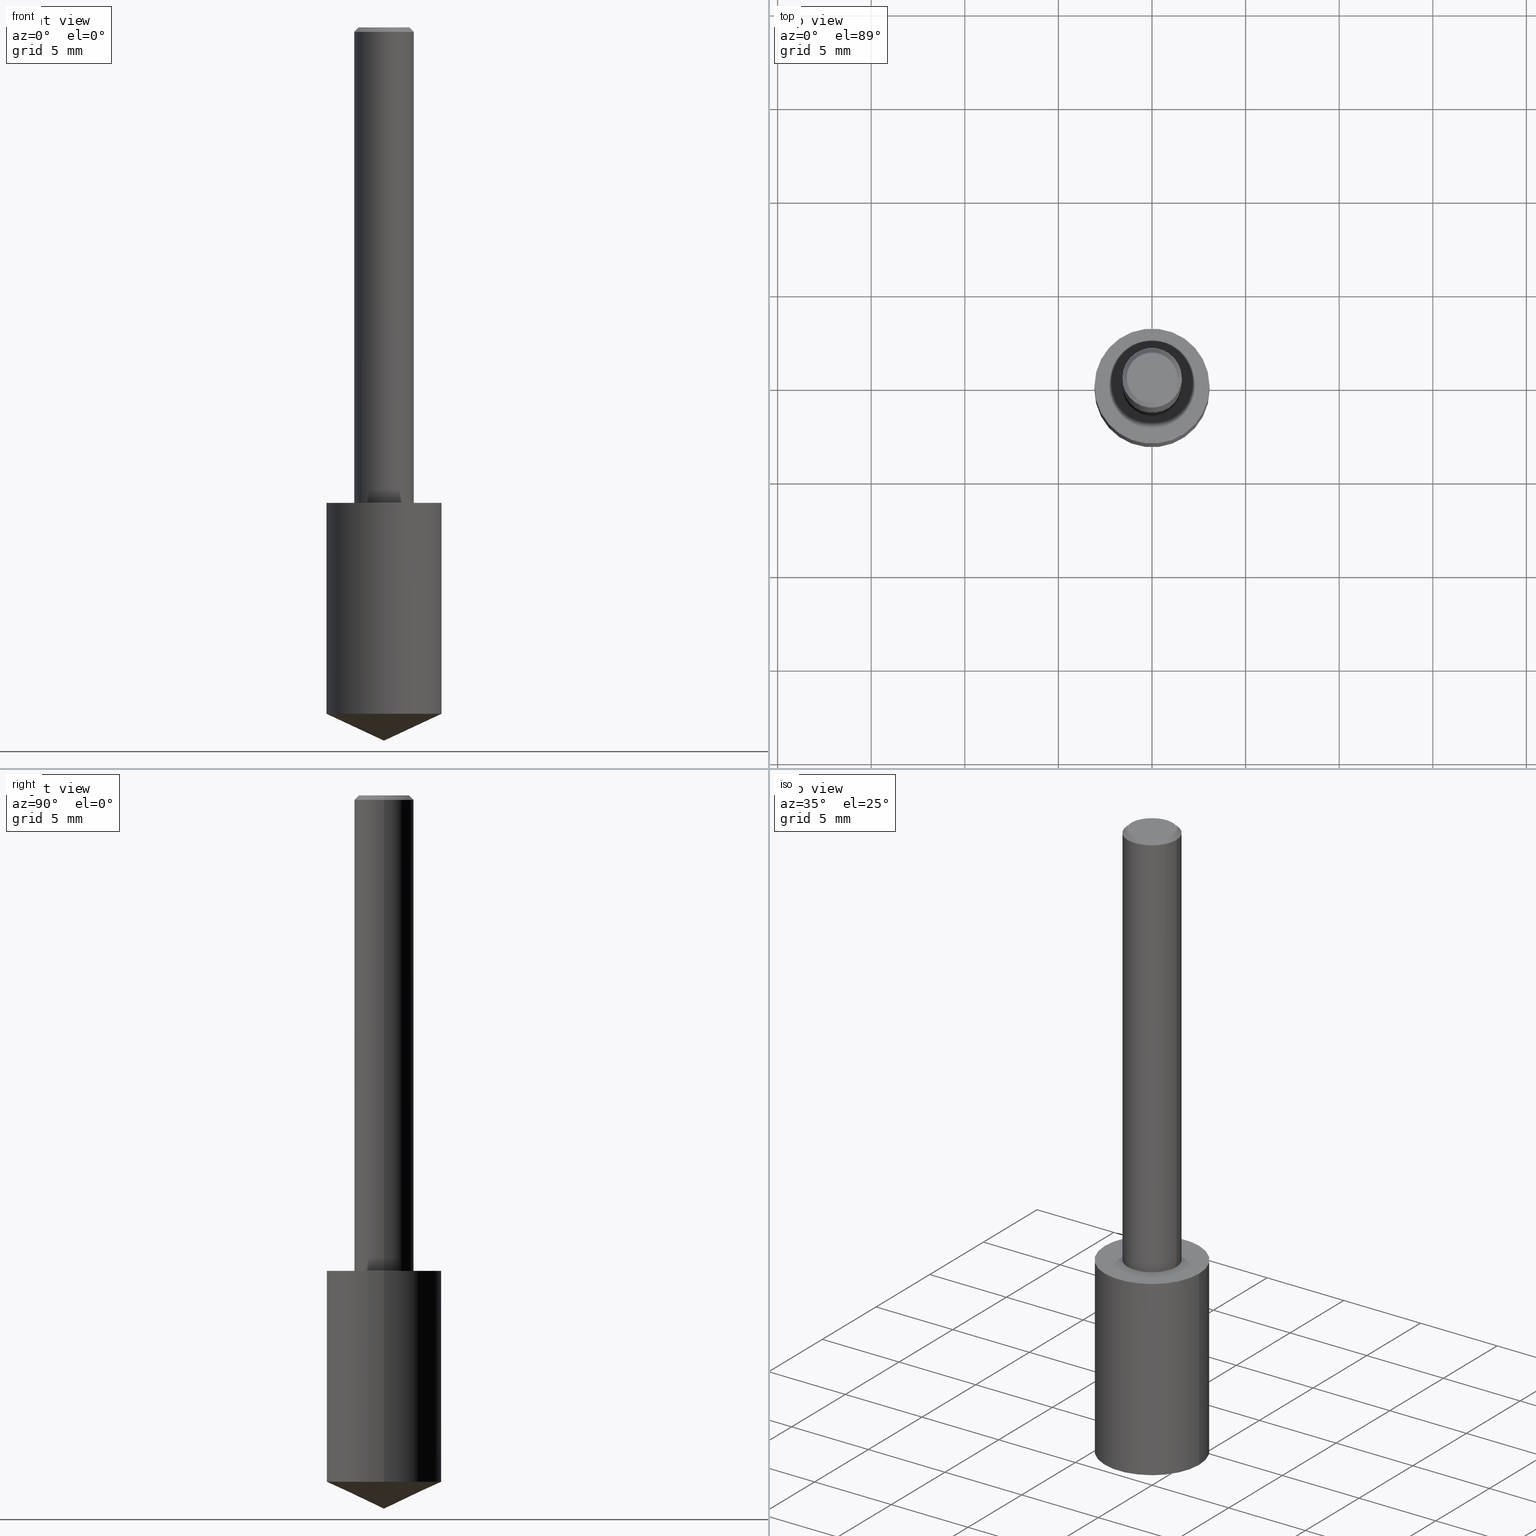
[diagram: canonical four-view strip — front | top / right | iso, engineering-drawing reading convention]
A machine part, canonical four-view strip (front | top / right | iso — engineering-drawing reading convention). The complete STEP part file that produces these views, byte-faithful:
ISO-10303-21;
HEADER;
FILE_DESCRIPTION (( 'STEP AP203' ),
    '1' );
FILE_NAME ('06167.STEP',
    '2024-04-30T18:32:33',
    ( '' ),
    ( '' ),
    'SwSTEP 2.0',
    'SolidWorks 2023',
    '' );
FILE_SCHEMA (( 'CONFIG_CONTROL_DESIGN' ));
ENDSEC;

DATA;
#1 = AXIS2_PLACEMENT_3D ( 'NONE', #221, #62, #89 ) ;
#2 = ORIENTED_EDGE ( 'NONE', *, *, #224, .T. ) ;
#3 = COORDINATED_UNIVERSAL_TIME_OFFSET ( 5, 0, .BEHIND. ) ;
#4 = DIRECTION ( 'NONE',  ( 2.438088387897960049E-29, -3.491481338843145188E-15, -1.000000000000000000 ) ) ;
#5 = ADVANCED_FACE ( 'NONE', ( #288 ), #183, .F. ) ;
#6 = CIRCLE ( 'NONE', #194, 0.06250000000000000000 ) ;
#7 = EDGE_CURVE ( 'NONE', #275, #155, #206, .T. ) ;
#8 =( CONVERSION_BASED_UNIT ( 'INCH', #190 ) LENGTH_UNIT ( ) NAMED_UNIT ( #229 ) );
#9 = CARTESIAN_POINT ( 'NONE',  ( -0.1210000000000000103, -2.631724628573425172E-15, -1.000000000000000222 ) ) ;
#10 = APPROVAL_ROLE ( '' ) ;
#11 = ORIENTED_EDGE ( 'NONE', *, *, #252, .F. ) ;
#12 = LINE ( 'NONE', #9, #55 ) ;
#13 = DIRECTION ( 'NONE',  ( -2.445468806185136597E-29, 3.491481338843145583E-15, 1.000000000000000000 ) ) ;
#14 = SECURITY_CLASSIFICATION_LEVEL ( 'unclassified' ) ;
#15 = DIRECTION ( 'NONE',  ( 1.000000000000000000, -6.982962677686266711E-15, 4.876176775795935793E-29 ) ) ;
#16 = COORDINATED_UNIVERSAL_TIME_OFFSET ( 5, 0, .BEHIND. ) ;
#17 = DIRECTION ( 'NONE',  ( -1.000000000000000000, 6.982962677686265922E-15, -4.876176775795935793E-29 ) ) ;
#18 = DIRECTION ( 'NONE',  ( 0.9063077870366508249, -4.853149677051392201E-15, 0.4226182617406975539 ) ) ;
#19 = CARTESIAN_POINT ( 'NONE',  ( 2.292627005798580623E-31, -3.273263755165470801E-17, -0.009375000000000062103 ) ) ;
#20 = CIRCLE ( 'NONE', #156, 0.05312499999999999861 ) ;
#21 = VERTEX_POINT ( 'NONE', #72 ) ;
#22 = CALENDAR_DATE ( 2024, 30, 4 ) ;
#23 = VERTEX_POINT ( 'NONE', #28 ) ;
#24 = APPROVAL ( #327, 'UNSPECIFIED' ) ;
#25 = ORIENTED_EDGE ( 'NONE', *, *, #302, .T. ) ;
#26 = CIRCLE ( 'NONE', #262, 0.1210000000000000103 ) ;
#27 = EDGE_CURVE ( 'NONE', #124, #329, #126, .T. ) ;
#28 = CARTESIAN_POINT ( 'NONE',  ( 0.1210000000000000103, -5.885159849385211106E-15, -1.443576773363245636 ) ) ;
#29 = AXIS2_PLACEMENT_3D ( 'NONE', #264, #318, #161 ) ;
#30 = CC_DESIGN_APPROVAL ( #160, ( #261 ) ) ;
#31 = APPLICATION_CONTEXT ( 'configuration controlled 3d designs of mechanical parts and assemblies' ) ;
#32 = CYLINDRICAL_SURFACE ( 'NONE', #263, 0.1210000000000000103 ) ;
#33 = AXIS2_PLACEMENT_3D ( 'NONE', #19, #138, #223 ) ;
#34 = DIRECTION ( 'NONE',  ( -1.000000000000000000, 6.982962677686266711E-15, 0.000000000000000000 ) ) ;
#35 = VERTEX_POINT ( 'NONE', #258 ) ;
#36 = DIRECTION ( 'NONE',  ( -2.445468806185136597E-29, 3.491481338843145583E-15, 1.000000000000000000 ) ) ;
#37 = ADVANCED_FACE ( 'NONE', ( #285 ), #48, .F. ) ;
#38 = PERSON_AND_ORGANIZATION ( #235, #189 ) ;
#39 = CIRCLE ( 'NONE', #311, 0.05312499999999999861 ) ;
#40 = CARTESIAN_POINT ( 'NONE',  ( 2.292627005798580623E-31, -3.273263755165470801E-17, -0.009375000000000062103 ) ) ;
#41 = ORIENTED_EDGE ( 'NONE', *, *, #27, .F. ) ;
#42 = CARTESIAN_POINT ( 'NONE',  ( -0.06250000000000000000, 4.037025298037369984E-16, -0.009375000000000062103 ) ) ;
#43 = DIRECTION ( 'NONE',  ( 1.000000000000000000, -6.982962677686266711E-15, 0.000000000000000000 ) ) ;
#44 = ADVANCED_BREP_SHAPE_REPRESENTATION ( '06167', ( #170, #174, #195 ), #231 ) ;
#45 = ORIENTED_EDGE ( 'NONE', *, *, #309, .F. ) ;
#46 = EDGE_CURVE ( 'NONE', #270, #275, #39, .T. ) ;
#47 = AXIS2_PLACEMENT_3D ( 'NONE', #150, #253, #167 ) ;
#48 = PLANE ( 'NONE',  #211 ) ;
#49 = CC_DESIGN_PERSON_AND_ORGANIZATION_ASSIGNMENT ( #122, #118, ( #210 ) ) ;
#50 = EDGE_CURVE ( 'NONE', #124, #23, #290, .T. ) ;
#51 = DIRECTION ( 'NONE',  ( -2.438088387897960049E-29, 3.491481338843145188E-15, 1.000000000000000000 ) ) ;
#52 = FACE_OUTER_BOUND ( 'NONE', #61, .T. ) ;
#53 = EDGE_CURVE ( 'NONE', #23, #329, #26, .T. ) ;
#54 = AXIS2_PLACEMENT_3D ( 'NONE', #108, #13, #15 ) ;
#55 = VECTOR ( 'NONE', #218, 39.37007874015748143 ) ;
#56 = PRODUCT ( '06167', '06167', '', ( #245 ) ) ;
#57 = LOCAL_TIME ( 14, 32, 33.00000000000000000, #16 ) ;
#58 = EDGE_LOOP ( 'NONE', ( #272, #299, #25, #225 ) ) ;
#59 = LOCAL_TIME ( 14, 32, 33.00000000000000000, #112 ) ;
#60 = CARTESIAN_POINT ( 'NONE',  ( 2.292627005798580623E-31, -3.273263755165470801E-17, -0.009375000000000062103 ) ) ;
#61 = EDGE_LOOP ( 'NONE', ( #313, #2, #187, #208 ) ) ;
#62 = DIRECTION ( 'NONE',  ( -2.445468806185136597E-29, 3.491481338843145583E-15, 1.000000000000000000 ) ) ;
#63 = EDGE_LOOP ( 'NONE', ( #45, #154, #141, #11 ) ) ;
#64 = CYLINDRICAL_SURFACE ( 'NONE', #326, 0.1210000000000000103 ) ;
#65 = DATE_TIME_ROLE ( 'creation_date' ) ;
#66 = DIRECTION ( 'NONE',  ( -2.445468806185136597E-29, 3.491481338843145583E-15, 1.000000000000000000 ) ) ;
#67 = DATE_AND_TIME ( #339, #132 ) ;
#68 = LINE ( 'NONE', #42, #97 ) ;
#69 = EDGE_LOOP ( 'NONE', ( #256, #219 ) ) ;
#70 = CALENDAR_DATE ( 2024, 30, 4 ) ;
#71 = CARTESIAN_POINT ( 'NONE',  ( 0.06250000000000012490, -3.927916506198539224E-15, -1.000000000000000222 ) ) ;
#72 = CARTESIAN_POINT ( 'NONE',  ( -0.06250000000000012490, -1.318017778347335489E-15, -1.000000000000000222 ) ) ;
#73 = EDGE_LOOP ( 'NONE', ( #217, #308, #196, #280 ) ) ;
#74 = CARTESIAN_POINT ( 'NONE',  ( -7.487088864773345706E-50, 1.068957861474247695E-35, 3.061616997868395197E-21 ) ) ;
#75 = APPLICATION_PROTOCOL_DEFINITION ( 'international standard', 'config_control_design', 1994, #31 ) ;
#76 = CONICAL_SURFACE ( 'NONE', #319, 84.42940631927440620, 1.134464013796316229 ) ;
#77 = UNCERTAINTY_MEASURE_WITH_UNIT (LENGTH_MEASURE( 1.000000000000000082E-05 ), #8, 'distance_accuracy_value', 'NONE');
#78 = ADVANCED_FACE ( 'NONE', ( #237 ), #64, .T. ) ;
#79 = DATE_AND_TIME ( #164, #336 ) ;
#80 = EDGE_LOOP ( 'NONE', ( #145, #255 ) ) ;
#81 = DIRECTION ( 'NONE',  ( 1.000000000000000000, -6.982962677686266711E-15, 0.000000000000000000 ) ) ;
#82 = ADVANCED_FACE ( 'NONE', ( #85 ), #315, .T. ) ;
#83 = AXIS2_PLACEMENT_3D ( 'NONE', #123, #289, #136 ) ;
#84 = CIRCLE ( 'NONE', #83, 0.1210000000000000103 ) ;
#85 = FACE_OUTER_BOUND ( 'NONE', #73, .T. ) ;
#86 = APPLICATION_CONTEXT ( 'configuration controlled 3d designs of mechanical parts and assemblies' ) ;
#87 = DIRECTION ( 'NONE',  ( 1.000000000000000000, 0.000000000000000000, 0.000000000000000000 ) ) ;
#88 = CARTESIAN_POINT ( 'NONE',  ( -9.261009624683002666E-28, 1.322226732217803884E-13, 37.87007874015748143 ) ) ;
#89 = DIRECTION ( 'NONE',  ( 1.000000000000000000, -6.982962677686264344E-15, 0.000000000000000000 ) ) ;
#90 = ORIENTED_EDGE ( 'NONE', *, *, #92, .F. ) ;
#91 = CARTESIAN_POINT ( 'NONE',  ( -0.06250000000000006939, 4.440892098500631092E-16, -3.074334431409319267E-30 ) ) ;
#92 = EDGE_CURVE ( 'NONE', #23, #35, #178, .T. ) ;
#93 = DIRECTION ( 'NONE',  ( 0.000000000000000000, 0.000000000000000000, 1.000000000000000000 ) ) ;
#94 = CARTESIAN_POINT ( 'NONE',  ( 2.445468806185137438E-29, -3.491481338843146371E-15, -1.000000000000000222 ) ) ;
#95 = EDGE_CURVE ( 'NONE', #155, #121, #215, .T. ) ;
#96 = DIRECTION ( 'NONE',  ( 1.000000000000000000, -6.982962677686265922E-15, 4.876176775795935793E-29 ) ) ;
#97 = VECTOR ( 'NONE', #298, 39.37007874015748143 ) ;
#98 = DIRECTION ( 'NONE',  ( -1.000000000000000000, 6.982962677686265922E-15, -4.876176775795935793E-29 ) ) ;
#99 = ADVANCED_FACE ( 'NONE', ( #120 ), #249, .T. ) ;
#100 = AXIS2_PLACEMENT_3D ( 'NONE', #246, #66, #81 ) ;
#101 = CARTESIAN_POINT ( 'NONE',  ( -0.1210000000000000103, -4.180464655115451414E-15, -1.443576773363245636 ) ) ;
#102 = CALENDAR_DATE ( 2024, 30, 4 ) ;
#103 = EDGE_CURVE ( 'NONE', #270, #121, #68, .T. ) ;
#104 = CIRCLE ( 'NONE', #185, 0.06250000000000012490 ) ;
#105 = CC_DESIGN_APPROVAL ( #307, ( #210 ) ) ;
#106 = DIRECTION ( 'NONE',  ( 1.000000000000000000, -6.982962677686263555E-15, 0.000000000000000000 ) ) ;
#107 = ORIENTED_EDGE ( 'NONE', *, *, #7, .F. ) ;
#108 = CARTESIAN_POINT ( 'NONE',  ( 0.000000000000000000, 0.000000000000000000, 0.000000000000000000 ) ) ;
#109 = CLOSED_SHELL ( 'NONE', ( #78, #144, #184, #324, #37 ) ) ;
#110 = CARTESIAN_POINT ( 'NONE',  ( -3.743544432386672853E-50, 5.344789307371238476E-36, 1.530808498934197599E-21 ) ) ;
#111 = ORIENTED_EDGE ( 'NONE', *, *, #239, .T. ) ;
#112 = COORDINATED_UNIVERSAL_TIME_OFFSET ( 5, 0, .BEHIND. ) ;
#113 = DIRECTION ( 'NONE',  ( -2.445468806185136597E-29, 3.491481338843145583E-15, 1.000000000000000000 ) ) ;
#114 = CARTESIAN_POINT ( 'NONE',  ( 3.668203209277704895E-29, -5.237222008264718177E-15, -1.500000000000000222 ) ) ;
#115 = DATE_AND_TIME ( #70, #57 ) ;
#116 = FACE_OUTER_BOUND ( 'NONE', #304, .T. ) ;
#117 = CARTESIAN_POINT ( 'NONE',  ( 3.530221968593207660E-29, -5.040221365385172613E-15, -1.443576773363245636 ) ) ;
#118 = PERSON_AND_ORGANIZATION_ROLE ( 'creator' ) ;
#119 = APPROVAL_PERSON_ORGANIZATION ( #38, #307, #248 ) ;
#120 = FACE_OUTER_BOUND ( 'NONE', #58, .T. ) ;
#121 = VERTEX_POINT ( 'NONE', #323 ) ;
#122 = PERSON_AND_ORGANIZATION ( #235, #189 ) ;
#123 = CARTESIAN_POINT ( 'NONE',  ( 3.530221968593207660E-29, -5.040221365385172613E-15, -1.443576773363245636 ) ) ;
#124 = VERTEX_POINT ( 'NONE', #114 ) ;
#125 = PERSON_AND_ORGANIZATION ( #235, #189 ) ;
#126 = LINE ( 'NONE', #286, #201 ) ;
#127 = DIRECTION ( 'NONE',  ( 1.000000000000000000, -6.982962677686268288E-15, 0.000000000000000000 ) ) ;
#128 = PRODUCT_DEFINITION_SHAPE ( 'NONE', 'NONE',  #210 ) ;
#129 = EDGE_CURVE ( 'NONE', #275, #270, #20, .T. ) ;
#130 = VECTOR ( 'NONE', #18, 39.37007874015748143 ) ;
#131 = CC_DESIGN_APPROVAL ( #24, ( #157 ) ) ;
#132 = LOCAL_TIME ( 14, 32, 33.00000000000000000, #273 ) ;
#133 = CARTESIAN_POINT ( 'NONE',  ( 2.445468806185137438E-29, -3.491481338843146371E-15, -1.000000000000000222 ) ) ;
#134 = SHAPE_DEFINITION_REPRESENTATION ( #128, #44 ) ;
#135 = APPROVAL_DATE_TIME ( #79, #24 ) ;
#136 = DIRECTION ( 'NONE',  ( 1.000000000000000000, -6.982962677686268288E-15, 0.000000000000000000 ) ) ;
#137 = COORDINATED_UNIVERSAL_TIME_OFFSET ( 5, 0, .BEHIND. ) ;
#138 = DIRECTION ( 'NONE',  ( 2.445468806185136597E-29, -3.491481338843145583E-15, -1.000000000000000000 ) ) ;
#139 = DIRECTION ( 'NONE',  ( 1.000000000000000000, -6.982962677686266711E-15, 0.000000000000000000 ) ) ;
#140 = VECTOR ( 'NONE', #259, 39.37007874015748143 ) ;
#141 = ORIENTED_EDGE ( 'NONE', *, *, #92, .T. ) ;
#142 = PERSON_AND_ORGANIZATION ( #235, #189 ) ;
#143 = DIRECTION ( 'NONE',  ( 2.445468806185136597E-29, -3.491481338843145583E-15, -1.000000000000000000 ) ) ;
#144 = ADVANCED_FACE ( 'NONE', ( #274 ), #76, .T. ) ;
#145 = ORIENTED_EDGE ( 'NONE', *, *, #159, .F. ) ;
#146 = CARTESIAN_POINT ( 'NONE',  ( 0.06250000000000000000, -4.691678049070463404E-16, -0.009375000000000062103 ) ) ;
#147 = PRODUCT_RELATED_PRODUCT_CATEGORY ( 'detail', '', ( #56 ) ) ;
#148 = CARTESIAN_POINT ( 'NONE',  ( 3.668203209277704895E-29, -5.237222008264718177E-15, -1.500000000000000222 ) ) ;
#149 = PERSON_AND_ORGANIZATION_ROLE ( 'design_owner' ) ;
#150 = CARTESIAN_POINT ( 'NONE',  ( 2.445468806185136877E-29, -3.491481338843145977E-15, -1.000000000000000222 ) ) ;
#151 = ORIENTED_EDGE ( 'NONE', *, *, #278, .F. ) ;
#152 = AXIS2_PLACEMENT_3D ( 'NONE', #40, #143, #34 ) ;
#153 = EDGE_CURVE ( 'NONE', #21, #186, #104, .T. ) ;
#154 = ORIENTED_EDGE ( 'NONE', *, *, #267, .T. ) ;
#155 = VERTEX_POINT ( 'NONE', #146 ) ;
#156 = AXIS2_PLACEMENT_3D ( 'NONE', #227, #271, #193 ) ;
#157 = SECURITY_CLASSIFICATION ( '', '', #14 ) ;
#158 = DIRECTION ( 'NONE',  ( -2.445468806185136597E-29, 3.491481338843145583E-15, 1.000000000000000000 ) ) ;
#159 = EDGE_CURVE ( 'NONE', #186, #21, #291, .T. ) ;
#160 = APPROVAL ( #281, 'UNSPECIFIED' ) ;
#161 = DIRECTION ( 'NONE',  ( 1.000000000000000000, -6.982962677686268288E-15, 0.000000000000000000 ) ) ;
#162 = CARTESIAN_POINT ( 'NONE',  ( 0.000000000000000000, 0.000000000000000000, 0.000000000000000000 ) ) ;
#163 = CARTESIAN_POINT ( 'NONE',  ( 0.05312499999999999861, -4.129888592719939842E-16, 3.061617000609493422E-21 ) ) ;
#164 = CALENDAR_DATE ( 2024, 30, 4 ) ;
#165 = VECTOR ( 'NONE', #301, 39.37007874015748143 ) ;
#166 = ADVANCED_FACE ( 'NONE', ( #250 ), #200, .F. ) ;
#167 = DIRECTION ( 'NONE',  ( 1.000000000000000000, -6.982962677686268288E-15, 0.000000000000000000 ) ) ;
#168 = CC_DESIGN_PERSON_AND_ORGANIZATION_ASSIGNMENT ( #226, #300, ( #157 ) ) ;
#169 = DIRECTION ( 'NONE',  ( -2.445468806185136597E-29, 3.491481338843145583E-15, 1.000000000000000000 ) ) ;
#170 = MANIFOLD_SOLID_BREP ( 'Body-Move/Copy2[1]', #109 ) ;
#171 = ORIENTED_EDGE ( 'NONE', *, *, #27, .T. ) ;
#172 = CARTESIAN_POINT ( 'NONE',  ( 2.445468806185137438E-29, -3.491481338843146371E-15, -1.000000000000000222 ) ) ;
#173 = APPROVAL_ROLE ( '' ) ;
#174 = MANIFOLD_SOLID_BREP ( 'Body-Move/Copy2[2]', #268 ) ;
#175 = FACE_OUTER_BOUND ( 'NONE', #179, .T. ) ;
#176 = VERTEX_POINT ( 'NONE', #269 ) ;
#177 = PERSON_AND_ORGANIZATION ( #235, #189 ) ;
#178 = LINE ( 'NONE', #197, #165 ) ;
#179 = EDGE_LOOP ( 'NONE', ( #107, #182, #191, #111 ) ) ;
#180 = PERSON_AND_ORGANIZATION_ROLE ( 'creator' ) ;
#181 = DIRECTION ( 'NONE',  ( -2.445468806185136597E-29, 3.491481338843145583E-15, 1.000000000000000000 ) ) ;
#182 = ORIENTED_EDGE ( 'NONE', *, *, #46, .F. ) ;
#183 = PLANE ( 'NONE',  #260 ) ;
#184 = ADVANCED_FACE ( 'NONE', ( #116 ), #303, .T. ) ;
#185 = AXIS2_PLACEMENT_3D ( 'NONE', #295, #36, #198 ) ;
#186 = VERTEX_POINT ( 'NONE', #71 ) ;
#187 = ORIENTED_EDGE ( 'NONE', *, *, #95, .F. ) ;
#188 = DIRECTION ( 'NONE',  ( 1.000000000000000000, -6.982962677686266711E-15, 4.876176628004948512E-29 ) ) ;
#189 = ORGANIZATION ( 'UNSPECIFIED', 'UNSPECIFIED', '' ) ;
#190 = LENGTH_MEASURE_WITH_UNIT ( LENGTH_MEASURE( 0.02539999999999999897 ), #241 );
#191 = ORIENTED_EDGE ( 'NONE', *, *, #103, .T. ) ;
#192 = DIRECTION ( 'NONE',  ( -2.445468806185136597E-29, 3.491481338843145583E-15, 1.000000000000000000 ) ) ;
#193 = DIRECTION ( 'NONE',  ( 1.000000000000000000, -6.982962677686266711E-15, 4.876176628004948512E-29 ) ) ;
#194 = AXIS2_PLACEMENT_3D ( 'NONE', #306, #181, #43 ) ;
#195 = AXIS2_PLACEMENT_3D ( 'NONE', #293, #93, #87 ) ;
#196 = ORIENTED_EDGE ( 'NONE', *, *, #95, .T. ) ;
#197 = CARTESIAN_POINT ( 'NONE',  ( 0.1210000000000000103, -4.336419822843184470E-15, -1.000000000000000222 ) ) ;
#198 = DIRECTION ( 'NONE',  ( 1.000000000000000000, -6.982962677686264344E-15, 0.000000000000000000 ) ) ;
#199 = APPROVAL_DATE_TIME ( #115, #160 ) ;
#200 = PLANE ( 'NONE',  #230 ) ;
#201 = VECTOR ( 'NONE', #236, 39.37007874015748143 ) ;
#202 = EDGE_LOOP ( 'NONE', ( #209, #332 ) ) ;
#203 = PERSON_AND_ORGANIZATION ( #235, #189 ) ;
#204 = DIRECTION ( 'NONE',  ( -2.445468806185136877E-29, 3.491481338843145188E-15, 1.000000000000000000 ) ) ;
#205 = ORIENTED_EDGE ( 'NONE', *, *, #309, .T. ) ;
#206 = LINE ( 'NONE', #310, #140 ) ;
#207 = CARTESIAN_POINT ( 'NONE',  ( 3.233749491345040755E-29, -2.362618531543863890E-15, -1.000000000000000222 ) ) ;
#208 = ORIENTED_EDGE ( 'NONE', *, *, #302, .F. ) ;
#209 = ORIENTED_EDGE ( 'NONE', *, *, #46, .T. ) ;
#210 = PRODUCT_DEFINITION ( 'UNKNOWN', '', #261, #240 ) ;
#211 = AXIS2_PLACEMENT_3D ( 'NONE', #207, #4, #98 ) ;
#212 = DATE_AND_TIME ( #102, #247 ) ;
#213 = CC_DESIGN_DATE_AND_TIME_ASSIGNMENT ( #67, #65, ( #210 ) ) ;
#214 = FACE_OUTER_BOUND ( 'NONE', #63, .T. ) ;
#215 = CIRCLE ( 'NONE', #234, 0.06250000000000000000 ) ;
#216 = ADVANCED_FACE ( 'NONE', ( #175 ), #294, .T. ) ;
#217 = ORIENTED_EDGE ( 'NONE', *, *, #129, .F. ) ;
#218 = DIRECTION ( 'NONE',  ( -2.445468806185136877E-29, 3.491481338843145188E-15, 1.000000000000000000 ) ) ;
#219 = ORIENTED_EDGE ( 'NONE', *, *, #252, .T. ) ;
#220 =( NAMED_UNIT ( * ) PLANE_ANGLE_UNIT ( ) SI_UNIT ( $, .RADIAN. ) );
#221 = CARTESIAN_POINT ( 'NONE',  ( 2.445468806185137438E-29, -3.491481338843146371E-15, -1.000000000000000222 ) ) ;
#222 = CIRCLE ( 'NONE', #47, 0.1210000000000000103 ) ;
#223 = DIRECTION ( 'NONE',  ( -1.000000000000000000, 6.982962677686266711E-15, 0.000000000000000000 ) ) ;
#224 = EDGE_CURVE ( 'NONE', #21, #121, #335, .T. ) ;
#225 = ORIENTED_EDGE ( 'NONE', *, *, #239, .F. ) ;
#226 = PERSON_AND_ORGANIZATION ( #235, #189 ) ;
#227 = CARTESIAN_POINT ( 'NONE',  ( -7.487088864773345706E-50, 1.068957861474247695E-35, 3.061616997868395197E-21 ) ) ;
#228 = ORIENTED_EDGE ( 'NONE', *, *, #267, .F. ) ;
#229 = DIMENSIONAL_EXPONENTS ( 1.000000000000000000, 0.000000000000000000, 0.000000000000000000, 0.000000000000000000, 0.000000000000000000, 0.000000000000000000, 0.000000000000000000 ) ;
#230 = AXIS2_PLACEMENT_3D ( 'NONE', #110, #296, #17 ) ;
#231 =( GEOMETRIC_REPRESENTATION_CONTEXT ( 3 ) GLOBAL_UNCERTAINTY_ASSIGNED_CONTEXT ( ( #77 ) ) GLOBAL_UNIT_ASSIGNED_CONTEXT ( ( #8, #220, #325 ) ) REPRESENTATION_CONTEXT ( 'NONE', 'WORKASPACE' ) );
#232 = EDGE_LOOP ( 'NONE', ( #340, #171, #338 ) ) ;
#233 = EDGE_LOOP ( 'NONE', ( #314, #205, #151, #90 ) ) ;
#234 = AXIS2_PLACEMENT_3D ( 'NONE', #60, #279, #139 ) ;
#235 = PERSON ( 'UNSPECIFIED', 'UNSPECIFIED', 'UNSPECIFIED', ('UNSPECIFIED'), ('UNSPECIFIED'), ('UNSPECIFIED') ) ;
#236 = DIRECTION ( 'NONE',  ( -0.9063077870366508249, 7.915267918739014631E-15, 0.4226182617406975539 ) ) ;
#237 = FACE_OUTER_BOUND ( 'NONE', #233, .T. ) ;
#238 = AXIS2_PLACEMENT_3D ( 'NONE', #162, #113, #257 ) ;
#239 = EDGE_CURVE ( 'NONE', #121, #155, #6, .T. ) ;
#240 = DESIGN_CONTEXT ( 'detailed design', #86, 'design' ) ;
#241 =( LENGTH_UNIT ( ) NAMED_UNIT ( * ) SI_UNIT ( $, .METRE. ) );
#242 = DIRECTION ( 'NONE',  ( -2.445468806185136877E-29, 3.491481338843145188E-15, 1.000000000000000000 ) ) ;
#243 = APPROVAL_PERSON_ORGANIZATION ( #177, #160, #173 ) ;
#244 = LINE ( 'NONE', #322, #292 ) ;
#245 = MECHANICAL_CONTEXT ( 'NONE', #31, 'mechanical' ) ;
#246 = CARTESIAN_POINT ( 'NONE',  ( -9.261009624683002666E-28, 1.322226732217803884E-13, 37.87007874015748143 ) ) ;
#247 = LOCAL_TIME ( 14, 32, 33.00000000000000000, #3 ) ;
#248 = APPROVAL_ROLE ( '' ) ;
#249 = CYLINDRICAL_SURFACE ( 'NONE', #54, 0.06250000000000006939 ) ;
#250 = FACE_OUTER_BOUND ( 'NONE', #202, .T. ) ;
#251 = DIRECTION ( 'NONE',  ( -2.445468806185136597E-29, 3.491481338843145583E-15, 1.000000000000000000 ) ) ;
#252 = EDGE_CURVE ( 'NONE', #176, #35, #222, .T. ) ;
#253 = DIRECTION ( 'NONE',  ( -2.445468806185136597E-29, 3.491481338843145583E-15, 1.000000000000000000 ) ) ;
#254 = VECTOR ( 'NONE', #204, 39.37007874015748143 ) ;
#255 = ORIENTED_EDGE ( 'NONE', *, *, #153, .F. ) ;
#256 = ORIENTED_EDGE ( 'NONE', *, *, #278, .T. ) ;
#257 = DIRECTION ( 'NONE',  ( 1.000000000000000000, -6.982962677686266711E-15, 4.876176775795935793E-29 ) ) ;
#258 = CARTESIAN_POINT ( 'NONE',  ( 0.1210000000000000103, -4.336419822843184470E-15, -1.000000000000000222 ) ) ;
#259 = DIRECTION ( 'NONE',  ( 0.7071067811865453523, -7.319954787623248157E-15, -0.7071067811865496822 ) ) ;
#260 = AXIS2_PLACEMENT_3D ( 'NONE', #94, #51, #96 ) ;
#261 = PRODUCT_DEFINITION_FORMATION_WITH_SPECIFIED_SOURCE ( 'ANY', '', #56, .NOT_KNOWN. ) ;
#262 = AXIS2_PLACEMENT_3D ( 'NONE', #117, #158, #127 ) ;
#263 = AXIS2_PLACEMENT_3D ( 'NONE', #133, #192, #106 ) ;
#264 = CARTESIAN_POINT ( 'NONE',  ( 2.445468806185136877E-29, -3.491481338843145977E-15, -1.000000000000000222 ) ) ;
#265 = DATE_TIME_ROLE ( 'classification_date' ) ;
#266 = ADVANCED_FACE ( 'NONE', ( #52 ), #282, .T. ) ;
#267 = EDGE_CURVE ( 'NONE', #329, #23, #84, .T. ) ;
#268 = CLOSED_SHELL ( 'NONE', ( #82, #266, #5, #99, #216, #166 ) ) ;
#269 = CARTESIAN_POINT ( 'NONE',  ( -0.1210000000000000103, -3.406094641844438096E-15, -1.000000000000000222 ) ) ;
#270 = VERTEX_POINT ( 'NONE', #320 ) ;
#271 = DIRECTION ( 'NONE',  ( -2.445468806185136597E-29, 3.491481338843145583E-15, 1.000000000000000000 ) ) ;
#272 = ORIENTED_EDGE ( 'NONE', *, *, #224, .F. ) ;
#273 = COORDINATED_UNIVERSAL_TIME_OFFSET ( 5, 0, .BEHIND. ) ;
#274 = FACE_OUTER_BOUND ( 'NONE', #232, .T. ) ;
#275 = VERTEX_POINT ( 'NONE', #163 ) ;
#276 = APPROVAL_STATUS ( 'not_yet_approved' ) ;
#277 = DIRECTION ( 'NONE',  ( 1.000000000000000000, -6.982962677686266711E-15, 0.000000000000000000 ) ) ;
#278 = EDGE_CURVE ( 'NONE', #35, #176, #283, .T. ) ;
#279 = DIRECTION ( 'NONE',  ( -2.445468806185136597E-29, 3.491481338843145583E-15, 1.000000000000000000 ) ) ;
#280 = ORIENTED_EDGE ( 'NONE', *, *, #103, .F. ) ;
#281 = APPROVAL_STATUS ( 'not_yet_approved' ) ;
#282 = CYLINDRICAL_SURFACE ( 'NONE', #238, 0.06250000000000006939 ) ;
#283 = CIRCLE ( 'NONE', #29, 0.1210000000000000103 ) ;
#284 = APPROVAL_PERSON_ORGANIZATION ( #125, #24, #10 ) ;
#285 = FACE_OUTER_BOUND ( 'NONE', #69, .T. ) ;
#286 = CARTESIAN_POINT ( 'NONE',  ( 3.668203209277704895E-29, -5.237222008264718177E-15, -1.500000000000000222 ) ) ;
#287 = CC_DESIGN_PERSON_AND_ORGANIZATION_ASSIGNMENT ( #203, #149, ( #56 ) ) ;
#288 = FACE_OUTER_BOUND ( 'NONE', #80, .T. ) ;
#289 = DIRECTION ( 'NONE',  ( -2.445468806185136597E-29, 3.491481338843145583E-15, 1.000000000000000000 ) ) ;
#290 = LINE ( 'NONE', #148, #130 ) ;
#291 = CIRCLE ( 'NONE', #1, 0.06250000000000012490 ) ;
#292 = VECTOR ( 'NONE', #242, 39.37007874015748143 ) ;
#293 = CARTESIAN_POINT ( 'NONE',  ( 0.000000000000000000, 0.000000000000000000, 0.000000000000000000 ) ) ;
#294 = CONICAL_SURFACE ( 'NONE', #152, 0.06250000000000000000, 0.7853981633974452814 ) ;
#295 = CARTESIAN_POINT ( 'NONE',  ( 2.445468806185137438E-29, -3.491481338843146371E-15, -1.000000000000000222 ) ) ;
#296 = DIRECTION ( 'NONE',  ( 2.438088387897960049E-29, -3.491481338843145188E-15, -1.000000000000000000 ) ) ;
#297 = APPROVAL_DATE_TIME ( #333, #307 ) ;
#298 = DIRECTION ( 'NONE',  ( -0.7071067811865453523, 2.468850131082234184E-15, -0.7071067811865496822 ) ) ;
#299 = ORIENTED_EDGE ( 'NONE', *, *, #153, .T. ) ;
#300 = PERSON_AND_ORGANIZATION_ROLE ( 'classification_officer' ) ;
#301 = DIRECTION ( 'NONE',  ( -2.445468806185136877E-29, 3.491481338843145188E-15, 1.000000000000000000 ) ) ;
#302 = EDGE_CURVE ( 'NONE', #186, #155, #244, .T. ) ;
#303 = CONICAL_SURFACE ( 'NONE', #100, 84.42940631927440620, 1.134464013796316229 ) ;
#304 = EDGE_LOOP ( 'NONE', ( #41, #321, #228 ) ) ;
#305 = APPLICATION_PROTOCOL_DEFINITION ( 'international standard', 'config_control_design', 1994, #86 ) ;
#306 = CARTESIAN_POINT ( 'NONE',  ( 2.292627005798580623E-31, -3.273263755165470801E-17, -0.009375000000000062103 ) ) ;
#307 = APPROVAL ( #276, 'UNSPECIFIED' ) ;
#308 = ORIENTED_EDGE ( 'NONE', *, *, #7, .T. ) ;
#309 = EDGE_CURVE ( 'NONE', #329, #176, #12, .T. ) ;
#310 = CARTESIAN_POINT ( 'NONE',  ( 0.06250000000000000000, -4.615137624123753937E-16, -0.009375000000000062103 ) ) ;
#311 = AXIS2_PLACEMENT_3D ( 'NONE', #74, #251, #188 ) ;
#312 = CC_DESIGN_PERSON_AND_ORGANIZATION_ASSIGNMENT ( #142, #337, ( #261 ) ) ;
#313 = ORIENTED_EDGE ( 'NONE', *, *, #159, .T. ) ;
#314 = ORIENTED_EDGE ( 'NONE', *, *, #53, .T. ) ;
#315 = CONICAL_SURFACE ( 'NONE', #33, 0.06250000000000000000, 0.7853981633974452814 ) ;
#316 = CC_DESIGN_SECURITY_CLASSIFICATION ( #157, ( #261 ) ) ;
#317 = CC_DESIGN_PERSON_AND_ORGANIZATION_ASSIGNMENT ( #330, #180, ( #261 ) ) ;
#318 = DIRECTION ( 'NONE',  ( -2.445468806185136597E-29, 3.491481338843145583E-15, 1.000000000000000000 ) ) ;
#319 = AXIS2_PLACEMENT_3D ( 'NONE', #88, #331, #277 ) ;
#320 = CARTESIAN_POINT ( 'NONE',  ( -0.05312499999999999861, 3.873362110279099094E-16, 3.061616995216862494E-21 ) ) ;
#321 = ORIENTED_EDGE ( 'NONE', *, *, #50, .T. ) ;
#322 = CARTESIAN_POINT ( 'NONE',  ( 0.06250000000000006939, -4.364351673553921624E-16, 3.047610484872463374E-30 ) ) ;
#323 = CARTESIAN_POINT ( 'NONE',  ( -0.06250000000000000000, -1.318017778347336672E-15, -0.009375000000000062103 ) ) ;
#324 = ADVANCED_FACE ( 'NONE', ( #214 ), #32, .T. ) ;
#325 =( NAMED_UNIT ( * ) SI_UNIT ( $, .STERADIAN. ) SOLID_ANGLE_UNIT ( ) );
#326 = AXIS2_PLACEMENT_3D ( 'NONE', #172, #169, #328 ) ;
#327 = APPROVAL_STATUS ( 'not_yet_approved' ) ;
#328 = DIRECTION ( 'NONE',  ( 1.000000000000000000, -6.982962677686263555E-15, 0.000000000000000000 ) ) ;
#329 = VERTEX_POINT ( 'NONE', #101 ) ;
#330 = PERSON_AND_ORGANIZATION ( #235, #189 ) ;
#331 = DIRECTION ( 'NONE',  ( -2.445468806185136597E-29, 3.491481338843145583E-15, 1.000000000000000000 ) ) ;
#332 = ORIENTED_EDGE ( 'NONE', *, *, #129, .T. ) ;
#333 = DATE_AND_TIME ( #22, #59 ) ;
#334 = CC_DESIGN_DATE_AND_TIME_ASSIGNMENT ( #212, #265, ( #157 ) ) ;
#335 = LINE ( 'NONE', #91, #254 ) ;
#336 = LOCAL_TIME ( 14, 32, 33.00000000000000000, #137 ) ;
#337 = PERSON_AND_ORGANIZATION_ROLE ( 'design_supplier' ) ;
#338 = ORIENTED_EDGE ( 'NONE', *, *, #53, .F. ) ;
#339 = CALENDAR_DATE ( 2024, 30, 4 ) ;
#340 = ORIENTED_EDGE ( 'NONE', *, *, #50, .F. ) ;
ENDSEC;
END-ISO-10303-21;
